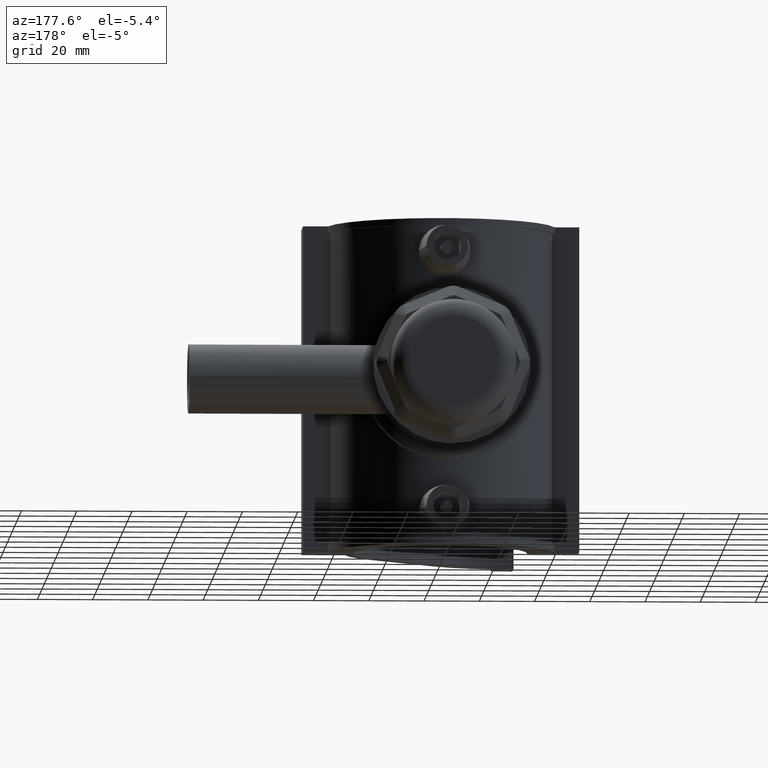
[diagram: clean part render]
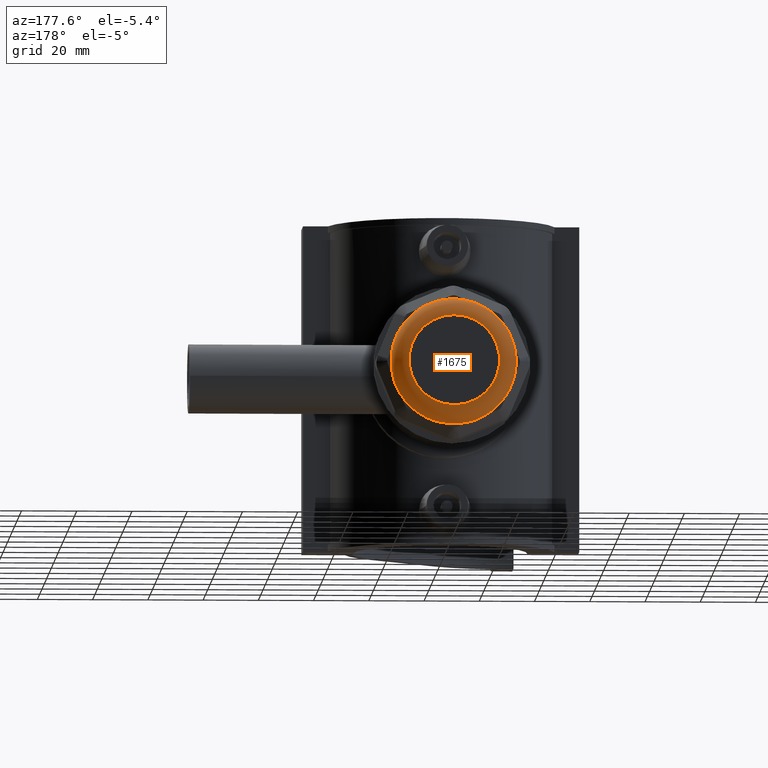
[diagram: same view with one face highlighted and labeled with its STEP entity id]
A machine part, auxiliary view. The second image highlights one B-rep face of the part: STEP entity #1675.
In plain terms, the highlighted toroidal blend (fillet) surface has major radius 16.38 mm and minor (blend) radius 6.3 mm.
Its self-contained STEP definition (entity closure, byte-faithful):
#18=TOROIDAL_SURFACE('',#1815,16.38,6.3);
#398=CIRCLE('',#1788,22.68);
#399=CIRCLE('',#1790,22.68);
#400=CIRCLE('',#1792,22.68);
#401=CIRCLE('',#1794,22.68);
#402=CIRCLE('',#1796,22.68);
#403=CIRCLE('',#1798,22.68);
#404=CIRCLE('',#1800,22.68);
#405=CIRCLE('',#1802,22.68);
#410=CIRCLE('',#1816,16.38);
#457=FACE_BOUND('',#626,.T.);
#514=FACE_OUTER_BOUND('',#625,.T.);
#625=EDGE_LOOP('',(#1293,#1294,#1295,#1296,#1297,#1298,#1299,#1300,#1301,
#1302,#1303,#1304,#1305,#1306,#1307,#1308));
#626=EDGE_LOOP('',(#1309));
#720=B_SPLINE_CURVE_WITH_KNOTS('',3,(#2684,#2685,#2686,#2687,#2688,#2689,
#2690,#2691,#2692,#2693,#2694),.UNSPECIFIED.,.F.,.F.,(4,2,3,2,4),(4.45759646203745,
4.49897961899694,4.78669242333216,5.07440522766738,5.11578838462687),
 .UNSPECIFIED.);
#721=B_SPLINE_CURVE_WITH_KNOTS('',3,(#2713,#2714,#2715,#2716,#2717,#2718,
#2719,#2720,#2721,#2722,#2723),.UNSPECIFIED.,.F.,.F.,(4,2,3,2,4),(4.45759646203745,
4.49897961899693,4.78669242333215,5.07440522766737,5.11578838462685),
 .UNSPECIFIED.);
#722=B_SPLINE_CURVE_WITH_KNOTS('',3,(#2739,#2740,#2741,#2742,#2743,#2744,
#2745,#2746,#2747,#2748,#2749),.UNSPECIFIED.,.F.,.F.,(4,2,3,2,4),(4.45759646203744,
4.49897961899692,4.78669242333214,5.07440522766736,5.11578838462684),
 .UNSPECIFIED.);
#723=B_SPLINE_CURVE_WITH_KNOTS('',3,(#2765,#2766,#2767,#2768,#2769,#2770,
#2771,#2772,#2773,#2774,#2775),.UNSPECIFIED.,.F.,.F.,(4,2,3,2,4),(4.45759646203747,
4.49897961899696,4.78669242333218,5.07440522766739,5.11578838462688),
 .UNSPECIFIED.);
#724=B_SPLINE_CURVE_WITH_KNOTS('',3,(#2791,#2792,#2793,#2794,#2795,#2796,
#2797,#2798,#2799,#2800,#2801),.UNSPECIFIED.,.F.,.F.,(4,2,3,2,4),(4.45759646203747,
4.49897961899695,4.78669242333217,5.07440522766739,5.11578838462688),
 .UNSPECIFIED.);
#725=B_SPLINE_CURVE_WITH_KNOTS('',3,(#2817,#2818,#2819,#2820,#2821,#2822,
#2823,#2824,#2825,#2826,#2827),.UNSPECIFIED.,.F.,.F.,(4,2,3,2,4),(4.45759646203747,
4.49897961899696,4.78669242333217,5.07440522766739,5.11578838462688),
 .UNSPECIFIED.);
#726=B_SPLINE_CURVE_WITH_KNOTS('',3,(#2843,#2844,#2845,#2846,#2847,#2848,
#2849,#2850,#2851,#2852,#2853),.UNSPECIFIED.,.F.,.F.,(4,2,3,2,4),(4.45759646203746,
4.49897961899695,4.78669242333217,5.07440522766739,5.11578838462688),
 .UNSPECIFIED.);
#727=B_SPLINE_CURVE_WITH_KNOTS('',3,(#2869,#2870,#2871,#2872,#2873,#2874,
#2875,#2876,#2877,#2878,#2879),.UNSPECIFIED.,.F.,.F.,(4,2,3,2,4),(4.45759646203745,
4.49897961899693,4.78669242333215,5.07440522766737,5.11578838462686),
 .UNSPECIFIED.);
#745=VERTEX_POINT('',#2682);
#746=VERTEX_POINT('',#2683);
#753=VERTEX_POINT('',#2711);
#754=VERTEX_POINT('',#2712);
#759=VERTEX_POINT('',#2737);
#760=VERTEX_POINT('',#2738);
#765=VERTEX_POINT('',#2763);
#766=VERTEX_POINT('',#2764);
#771=VERTEX_POINT('',#2789);
#772=VERTEX_POINT('',#2790);
#777=VERTEX_POINT('',#2815);
#778=VERTEX_POINT('',#2816);
#783=VERTEX_POINT('',#2841);
#784=VERTEX_POINT('',#2842);
#789=VERTEX_POINT('',#2867);
#790=VERTEX_POINT('',#2868);
#802=VERTEX_POINT('',#2940);
#906=EDGE_CURVE('',#745,#746,#720,.T.);
#915=EDGE_CURVE('',#753,#754,#721,.T.);
#923=EDGE_CURVE('',#759,#760,#722,.T.);
#931=EDGE_CURVE('',#765,#766,#723,.T.);
#939=EDGE_CURVE('',#771,#772,#724,.T.);
#947=EDGE_CURVE('',#777,#778,#725,.T.);
#955=EDGE_CURVE('',#783,#784,#726,.T.);
#963=EDGE_CURVE('',#789,#790,#727,.T.);
#970=EDGE_CURVE('',#766,#759,#398,.T.);
#971=EDGE_CURVE('',#760,#753,#399,.T.);
#972=EDGE_CURVE('',#754,#745,#400,.T.);
#973=EDGE_CURVE('',#746,#789,#401,.T.);
#974=EDGE_CURVE('',#790,#783,#402,.T.);
#975=EDGE_CURVE('',#784,#777,#403,.T.);
#976=EDGE_CURVE('',#778,#771,#404,.T.);
#977=EDGE_CURVE('',#772,#765,#405,.T.);
#995=EDGE_CURVE('',#802,#802,#410,.T.);
#1293=ORIENTED_EDGE('',*,*,#976,.T.);
#1294=ORIENTED_EDGE('',*,*,#939,.T.);
#1295=ORIENTED_EDGE('',*,*,#977,.T.);
#1296=ORIENTED_EDGE('',*,*,#931,.T.);
#1297=ORIENTED_EDGE('',*,*,#970,.T.);
#1298=ORIENTED_EDGE('',*,*,#923,.T.);
#1299=ORIENTED_EDGE('',*,*,#971,.T.);
#1300=ORIENTED_EDGE('',*,*,#915,.T.);
#1301=ORIENTED_EDGE('',*,*,#972,.T.);
#1302=ORIENTED_EDGE('',*,*,#906,.T.);
#1303=ORIENTED_EDGE('',*,*,#973,.T.);
#1304=ORIENTED_EDGE('',*,*,#963,.T.);
#1305=ORIENTED_EDGE('',*,*,#974,.T.);
#1306=ORIENTED_EDGE('',*,*,#955,.T.);
#1307=ORIENTED_EDGE('',*,*,#975,.T.);
#1308=ORIENTED_EDGE('',*,*,#947,.T.);
#1309=ORIENTED_EDGE('',*,*,#995,.T.);
#1675=ADVANCED_FACE('',(#514,#457),#18,.T.);
#1788=AXIS2_PLACEMENT_3D('',#2890,#2050,#2051);
#1790=AXIS2_PLACEMENT_3D('',#2892,#2054,#2055);
#1792=AXIS2_PLACEMENT_3D('',#2894,#2058,#2059);
#1794=AXIS2_PLACEMENT_3D('',#2896,#2062,#2063);
#1796=AXIS2_PLACEMENT_3D('',#2898,#2066,#2067);
#1798=AXIS2_PLACEMENT_3D('',#2900,#2070,#2071);
#1800=AXIS2_PLACEMENT_3D('',#2902,#2074,#2075);
#1802=AXIS2_PLACEMENT_3D('',#2904,#2078,#2079);
#1815=AXIS2_PLACEMENT_3D('',#2939,#2117,#2118);
#1816=AXIS2_PLACEMENT_3D('',#2941,#2119,#2120);
#2050=DIRECTION('center_axis',(0.,1.,3.06161699786838E-16));
#2051=DIRECTION('ref_axis',(1.,0.,0.));
#2054=DIRECTION('center_axis',(0.,1.,3.06161699786838E-16));
#2055=DIRECTION('ref_axis',(1.,0.,0.));
#2058=DIRECTION('center_axis',(0.,1.,3.06161699786838E-16));
#2059=DIRECTION('ref_axis',(1.,0.,0.));
#2062=DIRECTION('center_axis',(0.,1.,3.06161699786838E-16));
#2063=DIRECTION('ref_axis',(1.,0.,0.));
#2066=DIRECTION('center_axis',(0.,1.,3.06161699786838E-16));
#2067=DIRECTION('ref_axis',(1.,0.,0.));
#2070=DIRECTION('center_axis',(0.,1.,3.06161699786838E-16));
#2071=DIRECTION('ref_axis',(1.,0.,0.));
#2074=DIRECTION('center_axis',(0.,1.,3.06161699786838E-16));
#2075=DIRECTION('ref_axis',(1.,0.,0.));
#2078=DIRECTION('center_axis',(0.,1.,3.06161699786838E-16));
#2079=DIRECTION('ref_axis',(1.,0.,0.));
#2117=DIRECTION('center_axis',(0.,1.,3.06161699786838E-16));
#2118=DIRECTION('ref_axis',(0.,0.,1.));
#2119=DIRECTION('center_axis',(0.,-1.,-3.06161699786838E-16));
#2120=DIRECTION('ref_axis',(6.12323399573677E-17,3.06161699786838E-16,-1.));
#2682=CARTESIAN_POINT('',(-5.36492273379681,115.2,-22.0363337254723));
#2683=CARTESIAN_POINT('',(-11.7884677641617,115.2,-19.3756142553809));
#2684=CARTESIAN_POINT('Ctrl Pts',(-5.36492273379672,115.2,-22.0363337254723));
#2685=CARTESIAN_POINT('Ctrl Pts',(-5.50902974966908,115.177266033508,-22.0012497130779));
#2686=CARTESIAN_POINT('Ctrl Pts',(-5.6532550869446,115.156015156649,-21.9645114057018));
#2687=CARTESIAN_POINT('Ctrl Pts',(-6.79874598961344,114.998986621206,-21.6600000002281));
#2688=CARTESIAN_POINT('Ctrl Pts',(-7.79112595691476,114.937457639063,-21.3155412491081));
#2689=CARTESIAN_POINT('Ctrl Pts',(-8.67716586080387,114.937457639063,-20.9485315041135));
#2690=CARTESIAN_POINT('Ctrl Pts',(-9.56320576469298,114.937457639063,-20.5815217591189));
#2691=CARTESIAN_POINT('Ctrl Pts',(-10.5084934878414,114.998986621206,-20.1233722734824));
#2692=CARTESIAN_POINT('Ctrl Pts',(-11.5337999526652,115.156015156649,-19.5287099681769));
#2693=CARTESIAN_POINT('Ctrl Pts',(-11.6617605729465,115.177266033508,-19.4527051604454));
#2694=CARTESIAN_POINT('Ctrl Pts',(-11.7884677641618,115.2,-19.3756142553808));
#2711=CARTESIAN_POINT('',(11.7884677641617,115.2,-19.3756142553809));
#2712=CARTESIAN_POINT('',(5.36492273379688,115.2,-22.0363337254723));
#2713=CARTESIAN_POINT('Ctrl Pts',(11.7884677641618,115.2,-19.3756142553809));
#2714=CARTESIAN_POINT('Ctrl Pts',(11.6617605729465,115.177266033508,-19.4527051604454));
#2715=CARTESIAN_POINT('Ctrl Pts',(11.5337999526651,115.156015156649,-19.5287099681769));
#2716=CARTESIAN_POINT('Ctrl Pts',(10.5084934878414,114.998986621206,-20.1233722734824));
#2717=CARTESIAN_POINT('Ctrl Pts',(9.56320576469299,114.937457639063,-20.5815217591189));
#2718=CARTESIAN_POINT('Ctrl Pts',(8.67716586080389,114.937457639063,-20.9485315041135));
#2719=CARTESIAN_POINT('Ctrl Pts',(7.79112595691478,114.937457639063,-21.3155412491081));
#2720=CARTESIAN_POINT('Ctrl Pts',(6.79874598961348,114.998986621206,-21.660000000228));
#2721=CARTESIAN_POINT('Ctrl Pts',(5.65325508694465,115.156015156649,-21.9645114057018));
#2722=CARTESIAN_POINT('Ctrl Pts',(5.50902974966914,115.177266033508,-22.0012497130779));
#2723=CARTESIAN_POINT('Ctrl Pts',(5.36492273379679,115.2,-22.0363337254723));
#2737=CARTESIAN_POINT('',(22.0363337254723,115.2,-5.36492273379686));
#2738=CARTESIAN_POINT('',(19.375614255381,115.2,-11.7884677641616));
#2739=CARTESIAN_POINT('Ctrl Pts',(22.0363337254724,115.2,-5.36492273379677));
#2740=CARTESIAN_POINT('Ctrl Pts',(22.0012497130779,115.177266033508,-5.5090297496691));
#2741=CARTESIAN_POINT('Ctrl Pts',(21.9645114057018,115.156015156649,-5.65325508694459));
#2742=CARTESIAN_POINT('Ctrl Pts',(21.6600000002281,114.998986621206,-6.79874598961341));
#2743=CARTESIAN_POINT('Ctrl Pts',(21.3155412491081,114.937457639063,-7.79112595691472));
#2744=CARTESIAN_POINT('Ctrl Pts',(20.9485315041135,114.937457639063,-8.67716586080383));
#2745=CARTESIAN_POINT('Ctrl Pts',(20.5815217591189,114.937457639063,-9.56320576469294));
#2746=CARTESIAN_POINT('Ctrl Pts',(20.1233722734824,114.998986621206,-10.5084934878413));
#2747=CARTESIAN_POINT('Ctrl Pts',(19.5287099681769,115.156015156649,-11.5337999526651));
#2748=CARTESIAN_POINT('Ctrl Pts',(19.4527051604454,115.177266033508,-11.6617605729464));
#2749=CARTESIAN_POINT('Ctrl Pts',(19.3756142553809,115.2,-11.7884677641617));
#2763=CARTESIAN_POINT('',(19.3756142553809,115.2,11.7884677641618));
#2764=CARTESIAN_POINT('',(22.0363337254724,115.2,5.36492273379684));
#2765=CARTESIAN_POINT('Ctrl Pts',(19.3756142553809,115.2,11.7884677641618));
#2766=CARTESIAN_POINT('Ctrl Pts',(19.4527051604454,115.177266033508,11.6617605729466));
#2767=CARTESIAN_POINT('Ctrl Pts',(19.5287099681769,115.156015156649,11.5337999526652));
#2768=CARTESIAN_POINT('Ctrl Pts',(20.1233722734824,114.998986621206,10.5084934878414));
#2769=CARTESIAN_POINT('Ctrl Pts',(20.5815217591189,114.937457639063,9.56320576469302));
#2770=CARTESIAN_POINT('Ctrl Pts',(20.9485315041135,114.937457639063,8.67716586080391));
#2771=CARTESIAN_POINT('Ctrl Pts',(21.3155412491081,114.937457639063,7.7911259569148));
#2772=CARTESIAN_POINT('Ctrl Pts',(21.6600000002281,114.998986621206,6.79874598961348));
#2773=CARTESIAN_POINT('Ctrl Pts',(21.9645114057018,115.156015156649,5.65325508694463));
#2774=CARTESIAN_POINT('Ctrl Pts',(22.0012497130779,115.177266033508,5.50902974966911));
#2775=CARTESIAN_POINT('Ctrl Pts',(22.0363337254724,115.2,5.36492273379676));
#2789=CARTESIAN_POINT('',(5.36492273379683,115.2,22.0363337254724));
#2790=CARTESIAN_POINT('',(11.7884677641617,115.2,19.375614255381));
#2791=CARTESIAN_POINT('Ctrl Pts',(5.36492273379674,115.2,22.0363337254724));
#2792=CARTESIAN_POINT('Ctrl Pts',(5.50902974966909,115.177266033508,22.0012497130779));
#2793=CARTESIAN_POINT('Ctrl Pts',(5.65325508694462,115.156015156649,21.9645114057019));
#2794=CARTESIAN_POINT('Ctrl Pts',(6.79874598961345,114.998986621206,21.6600000002281));
#2795=CARTESIAN_POINT('Ctrl Pts',(7.79112595691475,114.937457639063,21.3155412491082));
#2796=CARTESIAN_POINT('Ctrl Pts',(8.67716586080386,114.937457639063,20.9485315041136));
#2797=CARTESIAN_POINT('Ctrl Pts',(9.56320576469297,114.937457639063,20.5815217591189));
#2798=CARTESIAN_POINT('Ctrl Pts',(10.5084934878414,114.998986621206,20.1233722734825));
#2799=CARTESIAN_POINT('Ctrl Pts',(11.5337999526651,115.156015156649,19.5287099681769));
#2800=CARTESIAN_POINT('Ctrl Pts',(11.6617605729465,115.177266033508,19.4527051604454));
#2801=CARTESIAN_POINT('Ctrl Pts',(11.7884677641618,115.2,19.3756142553809));
#2815=CARTESIAN_POINT('',(-11.7884677641617,115.2,19.3756142553809));
#2816=CARTESIAN_POINT('',(-5.36492273379682,115.2,22.0363337254724));
#2817=CARTESIAN_POINT('Ctrl Pts',(-11.7884677641618,115.2,19.3756142553809));
#2818=CARTESIAN_POINT('Ctrl Pts',(-11.6617605729465,115.177266033508,19.4527051604454));
#2819=CARTESIAN_POINT('Ctrl Pts',(-11.5337999526652,115.156015156649,19.5287099681769));
#2820=CARTESIAN_POINT('Ctrl Pts',(-10.5084934878414,114.998986621206,20.1233722734824));
#2821=CARTESIAN_POINT('Ctrl Pts',(-9.56320576469299,114.937457639063,20.5815217591189));
#2822=CARTESIAN_POINT('Ctrl Pts',(-8.67716586080388,114.937457639063,20.9485315041135));
#2823=CARTESIAN_POINT('Ctrl Pts',(-7.79112595691477,114.937457639063,21.3155412491082));
#2824=CARTESIAN_POINT('Ctrl Pts',(-6.79874598961347,114.998986621206,21.6600000002281));
#2825=CARTESIAN_POINT('Ctrl Pts',(-5.65325508694462,115.156015156649,21.9645114057019));
#2826=CARTESIAN_POINT('Ctrl Pts',(-5.5090297496691,115.177266033508,22.0012497130779));
#2827=CARTESIAN_POINT('Ctrl Pts',(-5.36492273379673,115.2,22.0363337254724));
#2841=CARTESIAN_POINT('',(-22.0363337254724,115.2,5.36492273379683));
#2842=CARTESIAN_POINT('',(-19.3756142553809,115.2,11.7884677641617));
#2843=CARTESIAN_POINT('Ctrl Pts',(-22.0363337254724,115.2,5.36492273379674));
#2844=CARTESIAN_POINT('Ctrl Pts',(-22.0012497130779,115.177266033508,5.5090297496691));
#2845=CARTESIAN_POINT('Ctrl Pts',(-21.9645114057018,115.156015156649,5.65325508694462));
#2846=CARTESIAN_POINT('Ctrl Pts',(-21.6600000002281,114.998986621206,6.79874598961347));
#2847=CARTESIAN_POINT('Ctrl Pts',(-21.3155412491081,114.937457639063,7.79112595691478));
#2848=CARTESIAN_POINT('Ctrl Pts',(-20.9485315041135,114.937457639063,8.67716586080389));
#2849=CARTESIAN_POINT('Ctrl Pts',(-20.5815217591189,114.937457639063,9.56320576469301));
#2850=CARTESIAN_POINT('Ctrl Pts',(-20.1233722734824,114.998986621206,10.5084934878414));
#2851=CARTESIAN_POINT('Ctrl Pts',(-19.5287099681769,115.156015156649,11.5337999526652));
#2852=CARTESIAN_POINT('Ctrl Pts',(-19.4527051604454,115.177266033508,11.6617605729466));
#2853=CARTESIAN_POINT('Ctrl Pts',(-19.3756142553809,115.2,11.7884677641618));
#2867=CARTESIAN_POINT('',(-19.3756142553809,115.2,-11.7884677641617));
#2868=CARTESIAN_POINT('',(-22.0363337254724,115.2,-5.36492273379681));
#2869=CARTESIAN_POINT('Ctrl Pts',(-19.3756142553809,115.2,-11.7884677641618));
#2870=CARTESIAN_POINT('Ctrl Pts',(-19.4527051604454,115.177266033508,-11.6617605729465));
#2871=CARTESIAN_POINT('Ctrl Pts',(-19.5287099681769,115.156015156649,-11.5337999526651));
#2872=CARTESIAN_POINT('Ctrl Pts',(-20.1233722734824,114.998986621206,-10.5084934878414));
#2873=CARTESIAN_POINT('Ctrl Pts',(-20.5815217591189,114.937457639063,-9.56320576469296));
#2874=CARTESIAN_POINT('Ctrl Pts',(-20.9485315041135,114.937457639063,-8.67716586080385));
#2875=CARTESIAN_POINT('Ctrl Pts',(-21.3155412491081,114.937457639063,-7.79112595691474));
#2876=CARTESIAN_POINT('Ctrl Pts',(-21.6600000002281,114.998986621206,-6.79874598961343));
#2877=CARTESIAN_POINT('Ctrl Pts',(-21.9645114057018,115.156015156649,-5.6532550869446));
#2878=CARTESIAN_POINT('Ctrl Pts',(-22.0012497130779,115.177266033508,-5.50902974966909));
#2879=CARTESIAN_POINT('Ctrl Pts',(-22.0363337254724,115.2,-5.36492273379673));
#2890=CARTESIAN_POINT('Origin',(0.,115.2,2.56257342721584E-14));
#2892=CARTESIAN_POINT('Origin',(0.,115.2,2.56257342721584E-14));
#2894=CARTESIAN_POINT('Origin',(0.,115.2,2.56257342721584E-14));
#2896=CARTESIAN_POINT('Origin',(0.,115.2,2.56257342721584E-14));
#2898=CARTESIAN_POINT('Origin',(0.,115.2,2.56257342721584E-14));
#2900=CARTESIAN_POINT('Origin',(0.,115.2,2.56257342721584E-14));
#2902=CARTESIAN_POINT('Origin',(0.,115.2,2.56257342721584E-14));
#2904=CARTESIAN_POINT('Origin',(0.,115.2,2.56257342721584E-14));
#2939=CARTESIAN_POINT('Origin',(0.,115.2,2.56257342721584E-14));
#2940=CARTESIAN_POINT('',(-3.00895718550505E-15,121.5,16.38));
#2941=CARTESIAN_POINT('Origin',(0.,121.5,2.75545529808154E-14));